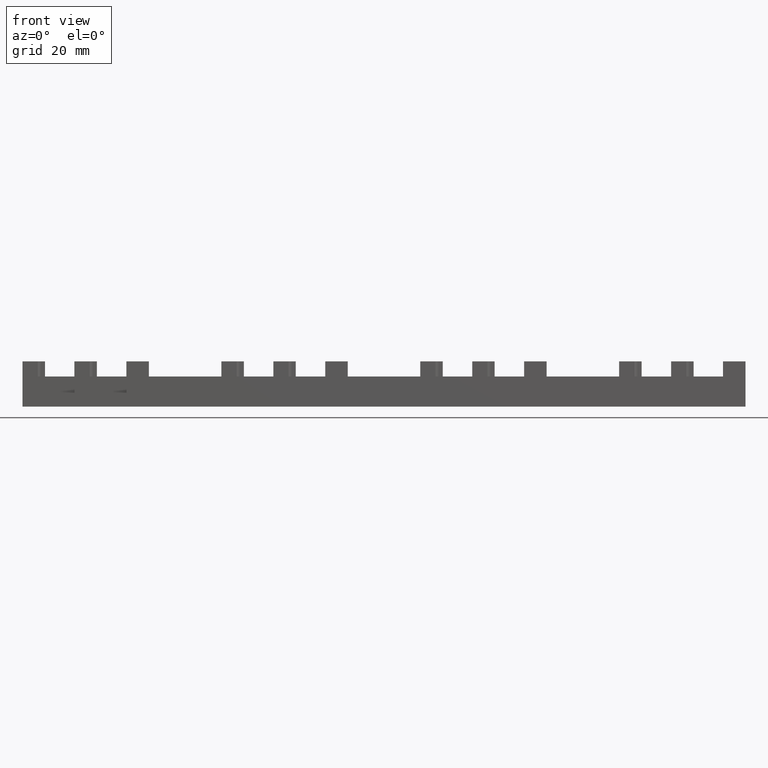
[diagram: clean part render]
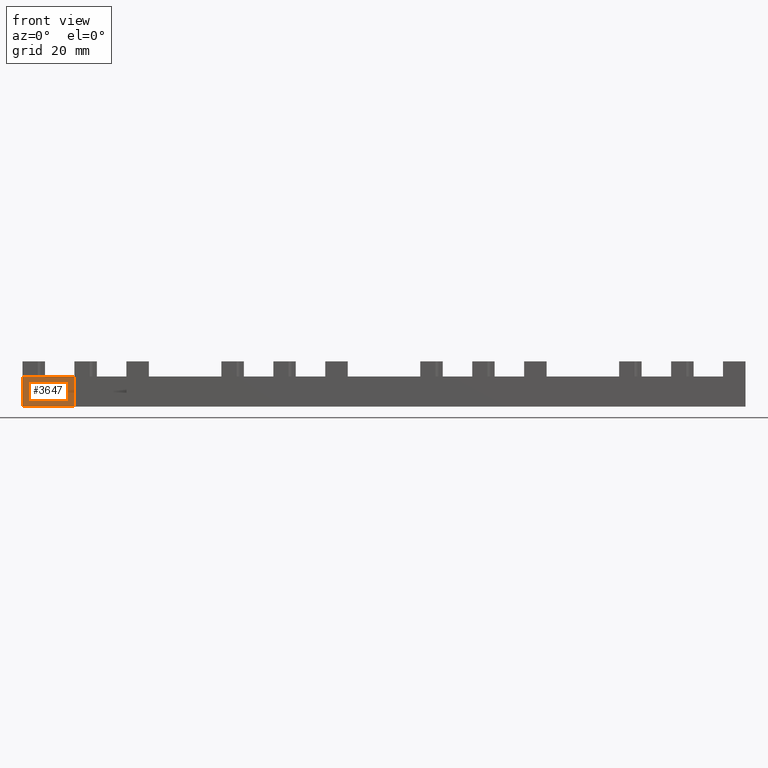
[diagram: same view with one face highlighted and labeled with its STEP entity id]
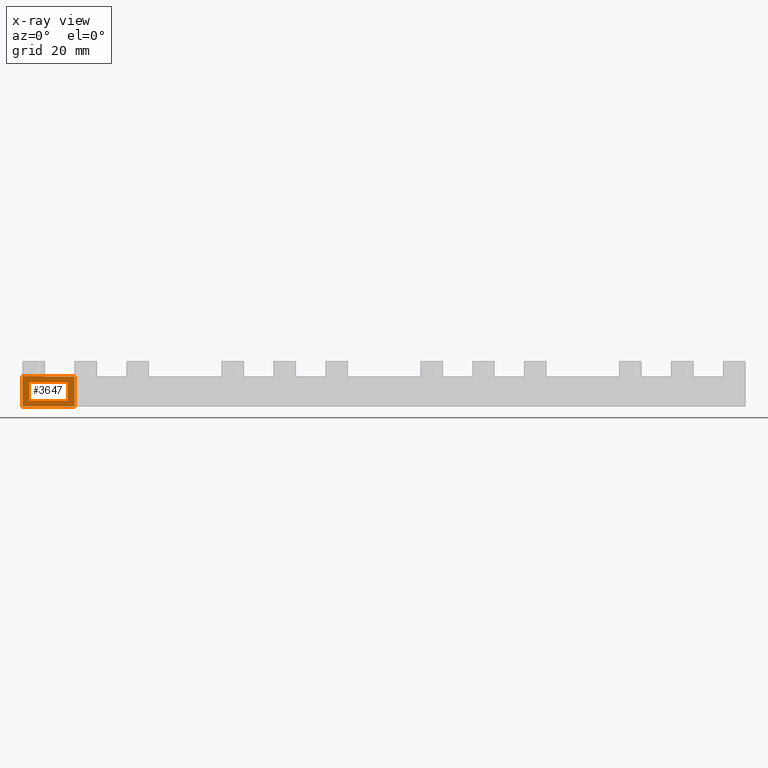
[diagram: x-ray of the same camera — body ghosted, the highlighted face saturated]
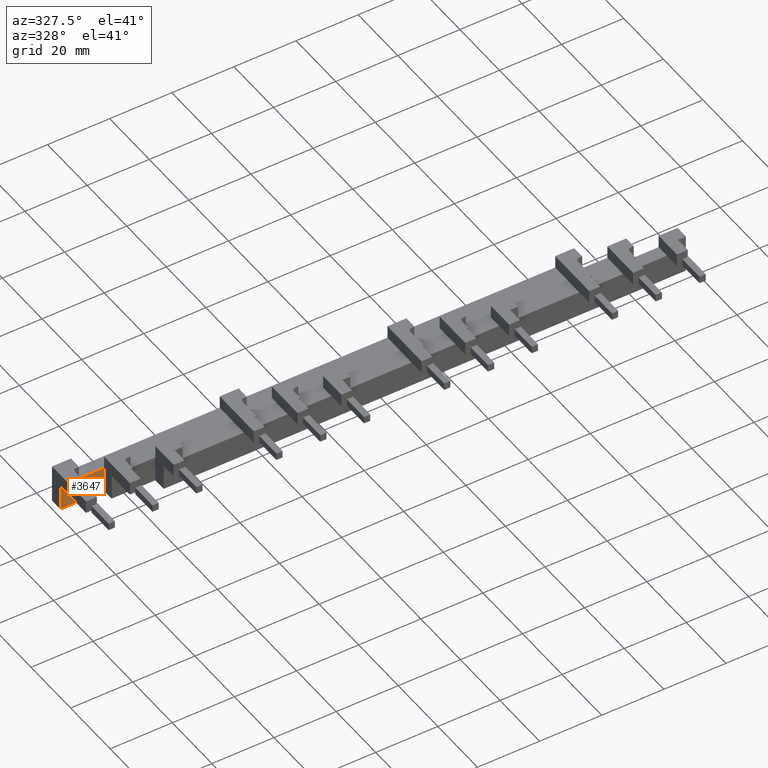
[diagram: same view with one face highlighted and labeled with its STEP entity id]
A machine part, front view. The second image highlights one B-rep face of the part: STEP entity #3647.
The next image is the same camera in x-ray: the body ghosted, the highlighted face saturated — about 0% of this face is hidden behind the body in this view.
A second angle (auxiliary view) of the same face is appended — the face is thin or edge-on in the first view.
In plain terms, the highlighted planar face has unit normal (0, 1, 0).
Its self-contained STEP definition (entity closure, byte-faithful):
#2979=CARTESIAN_POINT('',(4.564110105646947,7.999999999992271,96.0));
#2980=VERTEX_POINT('',#2979);
#2988=CARTESIAN_POINT('',(14.099999999999671,7.999999999992271,95.999999999999972));
#2989=VERTEX_POINT('',#2988);
#2990=CARTESIAN_POINT('',(4.564110105646932,7.999999999992271,95.999999999999972));
#2991=DIRECTION('',(1.0,0.0,0.0));
#2992=VECTOR('',#2991,9.535889894352739);
#2993=LINE('',#2990,#2992);
#2994=EDGE_CURVE('',#2980,#2989,#2993,.T.);
#3534=CARTESIAN_POINT('',(14.099999999999667,7.999999999992271,87.799999999999983));
#3535=VERTEX_POINT('',#3534);
#3536=CARTESIAN_POINT('',(14.099999999999667,7.999999999992271,95.999999999999972));
#3537=DIRECTION('',(0.0,0.0,-1.0));
#3538=VECTOR('',#3537,8.200000000000003);
#3539=LINE('',#3536,#3538);
#3540=EDGE_CURVE('',#2989,#3535,#3539,.T.);
#3589=CARTESIAN_POINT('',(-1.986645E-015,7.999999999992271,87.799999999999997));
#3590=VERTEX_POINT('',#3589);
#3591=CARTESIAN_POINT('',(14.099999999999669,7.999999999992272,87.799999999999983));
#3592=DIRECTION('',(-1.0,0.0,0.0));
#3593=VECTOR('',#3592,14.099999999999685);
#3594=LINE('',#3591,#3593);
#3595=EDGE_CURVE('',#3535,#3590,#3594,.T.);
#3623=CARTESIAN_POINT('',(7.049999999999828,7.999999999992271,91.899999999999963));
#3624=DIRECTION('',(0.0,1.0,0.0));
#3625=DIRECTION('',(0.0,0.0,1.0));
#3626=AXIS2_PLACEMENT_3D('',#3623,#3624,#3625);
#3627=PLANE('',#3626);
#3628=CARTESIAN_POINT('',(-6.002205E-016,7.999999999992271,96.0));
#3629=VERTEX_POINT('',#3628);
#3630=CARTESIAN_POINT('',(-6.002205E-016,7.999999999992271,95.999999999999972));
#3631=DIRECTION('',(0.0,0.0,-1.0));
#3632=VECTOR('',#3631,8.200000000000003);
#3633=LINE('',#3630,#3632);
#3634=EDGE_CURVE('',#3629,#3590,#3633,.T.);
#3635=ORIENTED_EDGE('',*,*,#3634,.T.);
#3636=ORIENTED_EDGE('',*,*,#3595,.F.);
#3637=ORIENTED_EDGE('',*,*,#3540,.F.);
#3638=ORIENTED_EDGE('',*,*,#2994,.F.);
#3639=CARTESIAN_POINT('',(-1.509903E-014,7.99999999999227,96.0));
#3640=DIRECTION('',(1.0,0.0,0.0));
#3641=VECTOR('',#3640,4.564110105646948);
#3642=LINE('',#3639,#3641);
#3643=EDGE_CURVE('',#3629,#2980,#3642,.T.);
#3644=ORIENTED_EDGE('',*,*,#3643,.F.);
#3645=EDGE_LOOP('',(#3635,#3636,#3637,#3638,#3644));
#3646=FACE_OUTER_BOUND('',#3645,.T.);
#3647=ADVANCED_FACE('',(#3646),#3627,.F.);